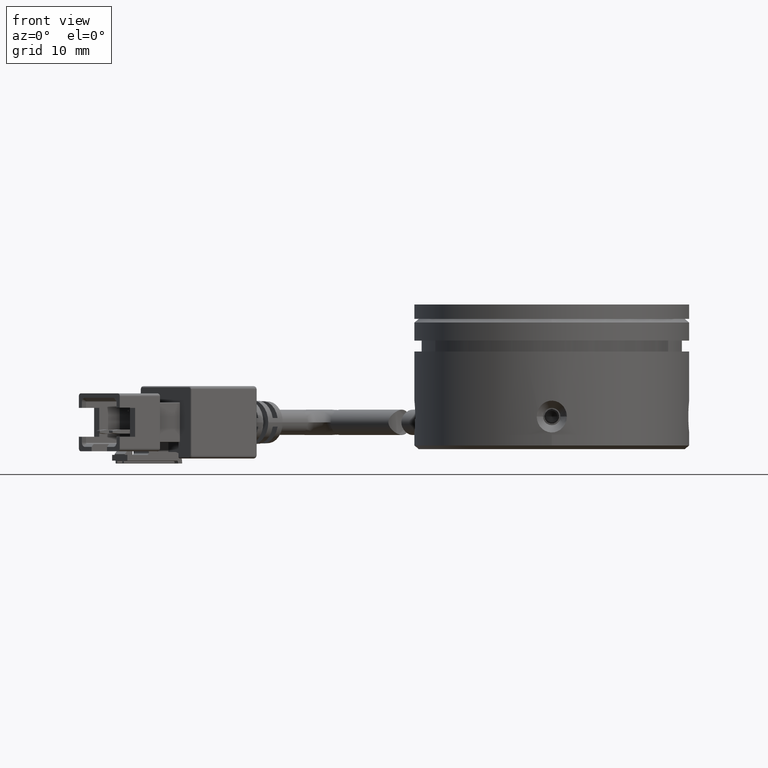
[diagram: clean part render]
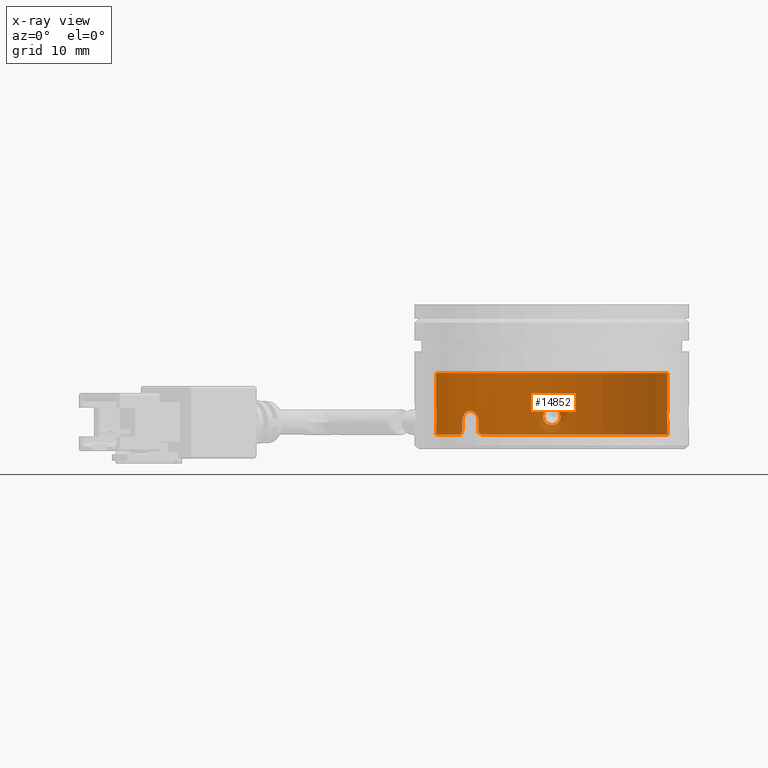
[diagram: x-ray — body ghosted, one internal face saturated and labeled with its STEP entity id]
A machine part, front view, then the same camera in x-ray: the body is ghosted and one INTERNAL B-rep face — a face not visible from any outside direction — is saturated and labeled: STEP entity #14852.
In plain terms, the highlighted cylindrical surface (partial cylindrical patch) has radius 16 mm, axis along (-0, 0, 1).
Its self-contained STEP definition (entity closure, byte-faithful):
#82 = EDGE_CURVE ( 'NONE', #1146, #20950, #19464, .T. ) ;
#249 = CARTESIAN_POINT ( 'NONE',  ( 8.326672684688674100E-014, -1.420917587780644300E-014, -6.835083653659800100 ) ) ;
#378 = CARTESIAN_POINT ( 'NONE',  ( 16.00000000000008200, 0.1585242707669172700, -3.135083653659796400 ) ) ;
#405 = CARTESIAN_POINT ( 'NONE',  ( -15.99999999999992000, -1.539647018829286300E-014, -5.535083653659795800 ) ) ;
#432 = CARTESIAN_POINT ( 'NONE',  ( 1.168329606399341600, 15.95739976434276000, -4.650408457592198500 ) ) ;
#458 = CARTESIAN_POINT ( 'NONE',  ( 1.734723475976807100E-014, 15.99999999999998900, -3.135083653659807000 ) ) ;
#477 = DIRECTION ( 'NONE',  ( -1.000000000000000000, -7.762887554996203100E-017, -5.421010862427521200E-016 ) ) ;
#502 = EDGE_CURVE ( 'NONE', #17630, #23307, #22966, .T. ) ;
#562 = LINE ( 'NONE', #6621, #15248 ) ;
#599 = VERTEX_POINT ( 'NONE', #6679 ) ;
#613 = CARTESIAN_POINT ( 'NONE',  ( -15.96572619059330100, 1.048439727425690200, -4.939642087790210700 ) ) ;
#799 = CARTESIAN_POINT ( 'NONE',  ( -0.1585995165080080200, 15.99999999999998900, -3.135083653659807900 ) ) ;
#877 = CARTESIAN_POINT ( 'NONE',  ( -0.3142230057457140500, 15.99757458764760900, -3.166322364951347400 ) ) ;
#964 = CARTESIAN_POINT ( 'NONE',  ( -0.6048179597235646700, 15.98922524765613500, -3.286782989289538800 ) ) ;
#988 = CARTESIAN_POINT ( 'NONE',  ( 16.00000000000008900, -1.487178104932984100E-014, -5.535083653659784300 ) ) ;
#1032 = CARTESIAN_POINT ( 'NONE',  ( -0.7378928504354971300, 15.98335986192142500, -3.375915946971397700 ) ) ;
#1118 = CARTESIAN_POINT ( 'NONE',  ( -0.9591962643572946600, 15.97160670880823300, -3.597227926081086200 ) ) ;
#1144 = CARTESIAN_POINT ( 'NONE',  ( -1.048596177418351000, 15.96571474644774300, -3.731039070977523000 ) ) ;
#1146 = VERTEX_POINT ( 'NONE', #20561 ) ;
#1207 = CARTESIAN_POINT ( 'NONE',  ( -1.168329606399316300, 15.95739976434275700, -4.019758849727410600 ) ) ;
#1241 = CARTESIAN_POINT ( 'NONE',  ( -1.199890962658233300, 15.95494474103948500, -4.177688880460396000 ) ) ;
#1326 = CARTESIAN_POINT ( 'NONE',  ( -1.200108458374536100, 15.95492838279227000, -4.490811380918906100 ) ) ;
#1485 = CARTESIAN_POINT ( 'NONE',  ( -1.169072333371053800, 15.95734608342769600, -4.648120404551360000 ) ) ;
#1563 = CARTESIAN_POINT ( 'NONE',  ( -1.048960132145660800, 15.96569155370690800, -4.938743134850437100 ) ) ;
#1570 = CARTESIAN_POINT ( 'NONE',  ( -15.97162593414493500, 0.9588750307348601300, -3.596825416522902300 ) ) ;
#1604 = LINE ( 'NONE', #7472, #15095 ) ;
#1638 = CARTESIAN_POINT ( 'NONE',  ( -0.9610526908098108200, 15.97150402601883500, -5.070929113806164100 ) ) ;
#1718 = CARTESIAN_POINT ( 'NONE',  ( -0.7371978798019307400, 15.98340084004852600, -5.295099331524663300 ) ) ;
#1773 = CARTESIAN_POINT ( 'NONE',  ( -10.12562697367774200, 12.38836867347463900, -6.535083653659798500 ) ) ;
#1806 = CARTESIAN_POINT ( 'NONE',  ( -0.6052149241453609300, 15.98921057957799600, -5.383164639477216800 ) ) ;
#1874 = CARTESIAN_POINT ( 'NONE',  ( -0.3145426129513556000, 15.99756865924116600, -5.503767444031701000 ) ) ;
#1943 = CARTESIAN_POINT ( 'NONE',  ( -0.1585993141077009200, 15.99999999999998200, -5.535083653659677700 ) ) ;
#1969 = ORIENTED_EDGE ( 'NONE', *, *, #4510, .F. ) ;
#1970 = B_SPLINE_CURVE_WITH_KNOTS ( 'NONE', 3,
 ( #23495, #10142, #12040, #613, #13981, #2522, #15936, #4447, #17823, #6411 ),
 .UNSPECIFIED., .F., .F.,
 ( 4, 2, 2, 2, 4 ),
 ( -0.001875239980263041200, -0.001406429985197280800, -0.0009376199901315201700, -0.0004688099950657595400, 8.673617379884035500E-019 ),
 .UNSPECIFIED. ) ;
#2013 = CARTESIAN_POINT ( 'NONE',  ( -11.60328978630202800, 11.01699601618051400, -3.586188232338541200 ) ) ;
#2032 = CARTESIAN_POINT ( 'NONE',  ( 1.471967961065994700E-014, 15.99999999999998900, -5.535083653659792300 ) ) ;
#2152 = DIRECTION ( 'NONE',  ( -1.000000000000000000, -7.762887554996203100E-017, -5.421010862427521200E-016 ) ) ;
#2351 = CARTESIAN_POINT ( 'NONE',  ( 1.200108458374565800, 15.95492838279227700, -4.179355926400697600 ) ) ;
#2522 = CARTESIAN_POINT ( 'NONE',  ( -15.98334236173269400, 0.7382588805057962400, -5.293958180536236600 ) ) ;
#2685 = CARTESIAN_POINT ( 'NONE',  ( -10.13371399555957500, 12.38177120725356100, -4.925337122874680100 ) ) ;
#2696 = VERTEX_POINT ( 'NONE', #23496 ) ;
#2701 = EDGE_CURVE ( 'NONE', #6002, #16167, #13864, .T. ) ;
#2734 = ORIENTED_EDGE ( 'NONE', *, *, #9398, .F. ) ;
#2748 = CARTESIAN_POINT ( 'NONE',  ( -10.12562697367774300, 12.38836867347464300, -5.029320142152612600 ) ) ;
#3126 = CARTESIAN_POINT ( 'NONE',  ( -10.12562697367774200, 12.38836867347463900, -5.135083653659796400 ) ) ;
#3180 = CARTESIAN_POINT ( 'NONE',  ( -10.16530794126011000, 12.35584606702136900, -4.720782337593536000 ) ) ;
#3373 = CARTESIAN_POINT ( 'NONE',  ( -12.38836867347469600, 10.12562697367767100, 10.74574377933753900 ) ) ;
#3416 = CARTESIAN_POINT ( 'NONE',  ( -10.18920057767576100, 12.33619950087621000, -4.619145937238372700 ) ) ;
#3417 = EDGE_LOOP ( 'NONE', ( #14595, #2734 ) ) ;
#3468 = B_SPLINE_CURVE_WITH_KNOTS ( 'NONE', 3,
 ( #17571, #19497, #8058, #21423, #9965, #23343, #11877, #432, #13820, #2351, #15767, #4282, #17666, #6243, #19571, #8136, #21503, #10053 ),
 .UNSPECIFIED., .F., .F.,
 ( 4, 2, 2, 2, 2, 2, 2, 2, 4 ),
 ( 0.003752260177793263500, 0.004221293298587085700, 0.004690326419380907500, 0.005159359540174730100, 0.005628392660968551900, 0.006097425781762373700, 0.006566458902556195400, 0.007035492023350015500, 0.007504525144143836400 ),
 .UNSPECIFIED. ) ;
#3532 = CARTESIAN_POINT ( 'NONE',  ( -15.95741475390711300, 1.168127500166700000, -4.019047259181878200 ) ) ;
#3550 = EDGE_CURVE ( 'NONE', #599, #6002, #1604, .T. ) ;
#3561 = CARTESIAN_POINT ( 'NONE',  ( -10.25126111892138100, 12.28467630868706800, -4.425432155843299900 ) ) ;
#3825 = ORIENTED_EDGE ( 'NONE', *, *, #19222, .F. ) ;
#3871 = CARTESIAN_POINT ( 'NONE',  ( -10.28912791240123200, 12.25305019483003800, -4.333566086431714500 ) ) ;
#3950 = CARTESIAN_POINT ( 'NONE',  ( -10.37806121490467800, 12.17781744379795200, -4.159704478894744800 ) ) ;
#3966 = CARTESIAN_POINT ( 'NONE',  ( -10.42956209954621400, 12.13382463555790400, -4.077434714375594500 ) ) ;
#4012 = CARTESIAN_POINT ( 'NONE',  ( -10.59709157279279300, 11.98847420220358900, -3.856203718846047000 ) ) ;
#4061 = CARTESIAN_POINT ( 'NONE',  ( 15.95493654014338800, 1.199999999999979100, -4.335083653659790300 ) ) ;
#4095 = CARTESIAN_POINT ( 'NONE',  ( -10.73061746347456100, 11.86974919819227200, -3.737011606776835700 ) ) ;
#4146 = CARTESIAN_POINT ( 'NONE',  ( 15.95493654014338400, 1.199999999999979100, -4.176558678835806200 ) ) ;
#4236 = CARTESIAN_POINT ( 'NONE',  ( -11.01324005830090000, 11.60799899180076100, -3.577345900279245600 ) ) ;
#4264 = CARTESIAN_POINT ( 'NONE',  ( -11.16524425142649700, 11.46215174638495800, -3.535232147237823400 ) ) ;
#4282 = CARTESIAN_POINT ( 'NONE',  ( 1.048960132145685800, 15.96569155370690800, -3.731424172469155500 ) ) ;
#4284 = VECTOR ( 'NONE', #24268, 1000.000000000000000 ) ;
#4315 = CARTESIAN_POINT ( 'NONE',  ( -11.38673700580213900, 11.24069040688722700, -3.535010010450466900 ) ) ;
#4347 = CARTESIAN_POINT ( 'NONE',  ( -11.46099179335950200, 11.16495419596445300, -3.545389315399806000 ) ) ;
#4447 = CARTESIAN_POINT ( 'NONE',  ( -15.99752946306320900, 0.3160364714517593400, -5.503211162288678800 ) ) ;
#4510 = EDGE_CURVE ( 'NONE', #17929, #14168, #10197, .T. ) ;
#4541 = CARTESIAN_POINT ( 'NONE',  ( -11.67175940160270600, 10.94437911623518500, -3.616383162636081800 ) ) ;
#4622 = CARTESIAN_POINT ( 'NONE',  ( -11.80354684949176300, 10.80211477168424800, -3.696487421920180000 ) ) ;
#4643 = CARTESIAN_POINT ( 'NONE',  ( -11.86657678847178100, 10.73274842954066700, -3.746532463103394100 ) ) ;
#4667 = FACE_BOUND ( 'NONE', #3417, .T. ) ;
#4683 = CARTESIAN_POINT ( 'NONE',  ( -11.98231978868393500, 10.60337427474002100, -3.862247286587893000 ) ) ;
#4770 = CARTESIAN_POINT ( 'NONE',  ( -12.03578531414158100, 10.54255587740537200, -3.928316550675006600 ) ) ;
#4801 = CARTESIAN_POINT ( 'NONE',  ( -12.13398249234351000, 10.42938547719001500, -4.077573169466386800 ) ) ;
#4832 = CARTESIAN_POINT ( 'NONE',  ( -12.17710394314926200, 10.37889795467596300, -4.158312772626028500 ) ) ;
#4840 = CARTESIAN_POINT ( 'NONE',  ( -9.715197645715504000, 12.71278626834739200, -6.835083653659803600 ) ) ;
#4893 = CARTESIAN_POINT ( 'NONE',  ( -12.28452472749894000, 10.25144291404706500, -4.424952198904051700 ) ) ;
#5009 = CARTESIAN_POINT ( 'NONE',  ( -12.36188340739521300, 10.15826545350967400, -4.715531500563373300 ) ) ;
#5053 = VECTOR ( 'NONE', #15246, 1000.000000000000000 ) ;
#5061 = LINE ( 'NONE', #15897, #19684 ) ;
#5225 = CARTESIAN_POINT ( 'NONE',  ( -12.38836867347468000, 10.12562697367767800, -4.923557011602298400 ) ) ;
#5311 = EDGE_CURVE ( 'NONE', #6565, #6641, #5061, .T. ) ;
#5320 = CARTESIAN_POINT ( 'NONE',  ( -12.38836867347468200, 10.12562697367767400, -5.135083653659798100 ) ) ;
#5369 = ORIENTED_EDGE ( 'NONE', *, *, #24118, .T. ) ;
#5370 = CARTESIAN_POINT ( 'NONE',  ( -15.99999999999991700, 0.1585249498188053800, -3.135083653659847400 ) ) ;
#5392 = CARTESIAN_POINT ( 'NONE',  ( 16.00000000000008200, -1.474750050315809000E-014, 1.664916346340207200 ) ) ;
#5453 = CARTESIAN_POINT ( 'NONE',  ( -15.95493654014322800, 1.199999999999980400, -4.335083653659802700 ) ) ;
#5622 = CARTESIAN_POINT ( 'NONE',  ( 7.632783294297951200E-014, -1.385107938883699800E-014, 1.664916346340198600 ) ) ;
#5749 = CARTESIAN_POINT ( 'NONE',  ( 16.00000000000008900, -1.487178104932984100E-014, -5.535083653659784300 ) ) ;
#5830 = ORIENTED_EDGE ( 'NONE', *, *, #2701, .T. ) ;
#6002 = VERTEX_POINT ( 'NONE', #988 ) ;
#6243 = CARTESIAN_POINT ( 'NONE',  ( 0.7371978798019435100, 15.98340084004853500, -3.375067975794922700 ) ) ;
#6348 = DIRECTION ( 'NONE',  ( -5.418055927066809900E-016, 4.212899870228777700E-017, 1.000000000000000000 ) ) ;
#6411 = CARTESIAN_POINT ( 'NONE',  ( -15.99999999999992000, -1.539647018829286300E-014, -5.535083653659795800 ) ) ;
#6565 = VERTEX_POINT ( 'NONE', #21157 ) ;
#6621 = CARTESIAN_POINT ( 'NONE',  ( -15.99999999999993100, -1.471057523049594800E-014, 10.74574377933753800 ) ) ;
#6641 = VERTEX_POINT ( 'NONE', #405 ) ;
#6679 = CARTESIAN_POINT ( 'NONE',  ( 16.00000000000008900, -1.474750050315809000E-014, -6.835083653659792100 ) ) ;
#6883 = CIRCLE ( 'NONE', #8826, 16.00000000000000400 ) ;
#7366 = CYLINDRICAL_SURFACE ( 'NONE', #9007, 16.00000000000000400 ) ;
#7472 = CARTESIAN_POINT ( 'NONE',  ( 16.00000000000007800, -1.418588609153292500E-014, 10.74574377933755500 ) ) ;
#7533 = DIRECTION ( 'NONE',  ( -1.000000000000000000, -7.762887554996203100E-017, -5.421010862427521200E-016 ) ) ;
#7607 = DIRECTION ( 'NONE',  ( -5.418055927066809900E-016, 4.212899870228777700E-017, 1.000000000000000000 ) ) ;
#7892 = ORIENTED_EDGE ( 'NONE', *, *, #23182, .F. ) ;
#8002 = CARTESIAN_POINT ( 'NONE',  ( 15.96572619059346100, 1.048439727425690500, -3.730525219529384100 ) ) ;
#8058 = CARTESIAN_POINT ( 'NONE',  ( 0.3142230057457500200, 15.99757458764761800, -5.503844942368250100 ) ) ;
#8136 = CARTESIAN_POINT ( 'NONE',  ( 0.3145426129514020700, 15.99756865924116200, -3.166399863287908500 ) ) ;
#8319 = ORIENTED_EDGE ( 'NONE', *, *, #5311, .F. ) ;
#8348 = CARTESIAN_POINT ( 'NONE',  ( -12.25224248853598800, 10.29008927065025200, -4.331447468998818300 ) ) ;
#8505 = DIRECTION ( 'NONE',  ( -5.418055927066809900E-016, 4.212899870228777700E-017, 1.000000000000000000 ) ) ;
#8580 = CARTESIAN_POINT ( 'NONE',  ( 7.285838599102589800E-014, -1.346851322169655200E-014, 10.74574377933754700 ) ) ;
#8826 = AXIS2_PLACEMENT_3D ( 'NONE', #249, #13627, #2152 ) ;
#8877 = ORIENTED_EDGE ( 'NONE', *, *, #10171, .T. ) ;
#8929 = VECTOR ( 'NONE', #7607, 1000.000000000000000 ) ;
#9007 = AXIS2_PLACEMENT_3D ( 'NONE', #8580, #8505, #20103 ) ;
#9151 = AXIS2_PLACEMENT_3D ( 'NONE', #23380, #11915, #477 ) ;
#9216 = CIRCLE ( 'NONE', #9151, 16.00000000000000400 ) ;
#9398 = EDGE_CURVE ( 'NONE', #23307, #17630, #3468, .T. ) ;
#9906 = CARTESIAN_POINT ( 'NONE',  ( 15.98334236173285400, 0.7382588805057971300, -3.376209126783359600 ) ) ;
#9965 = CARTESIAN_POINT ( 'NONE',  ( 0.7378928504355238800, 15.98335986192143900, -5.294251360348202900 ) ) ;
#9966 = LINE ( 'NONE', #3373, #4284 ) ;
#10018 = CIRCLE ( 'NONE', #23484, 16.00000000000000400 ) ;
#10053 = CARTESIAN_POINT ( 'NONE',  ( 1.734723475976807100E-014, 15.99999999999998900, -3.135083653659807000 ) ) ;
#10120 = LINE ( 'NONE', #13289, #5053 ) ;
#10142 = CARTESIAN_POINT ( 'NONE',  ( -15.95493654014322400, 1.199999999999980200, -4.493608628483791300 ) ) ;
#10171 = EDGE_CURVE ( 'NONE', #14390, #6641, #1970, .T. ) ;
#10197 =( BOUNDED_CURVE ( )  B_SPLINE_CURVE ( 3, ( #19208, #23124, #17445, #19379 ),
 .UNSPECIFIED., .F., .T. ) 
 B_SPLINE_CURVE_WITH_KNOTS ( ( 4, 4 ),
 ( 1.670963747956457400, 1.689827206273323300 ),
 .UNSPECIFIED. ) 
 CURVE ( )  GEOMETRIC_REPRESENTATION_ITEM ( )  RATIONAL_B_SPLINE_CURVE ( ( 1.000000000000000000, 0.9999703477148443900, 0.9999703477148443900, 1.000000000000000000 ) ) 
 REPRESENTATION_ITEM ( '' )  );
#10416 = VERTEX_POINT ( 'NONE', #5392 ) ;
#10528 = EDGE_CURVE ( 'NONE', #18059, #10416, #10120, .T. ) ;
#10557 = EDGE_CURVE ( 'NONE', #18535, #1146, #19074, .T. ) ;
#11134 = CARTESIAN_POINT ( 'NONE',  ( -15.99757705726191600, 0.3140721736569396200, -3.166291326207477700 ) ) ;
#11142 = CARTESIAN_POINT ( 'NONE',  ( -12.38836867347467500, 10.12562697367766300, -6.315468411389135300 ) ) ;
#11619 = EDGE_CURVE ( 'NONE', #24260, #10416, #10018, .T. ) ;
#11824 = CARTESIAN_POINT ( 'NONE',  ( 15.99752946306337300, 0.3160364714517603900, -3.166956145030914700 ) ) ;
#11877 = CARTESIAN_POINT ( 'NONE',  ( 1.048596177418374100, 15.96571474644775000, -4.939128236342086500 ) ) ;
#11915 = DIRECTION ( 'NONE',  ( -5.418055927066809900E-016, 4.212899870228777700E-017, 1.000000000000000000 ) ) ;
#12032 = EDGE_CURVE ( 'NONE', #20950, #17929, #9966, .T. ) ;
#12040 = CARTESIAN_POINT ( 'NONE',  ( -15.95736705046227000, 1.168792313399884300, -4.649155763946615700 ) ) ;
#13026 = CARTESIAN_POINT ( 'NONE',  ( -15.98337379188156000, 0.7375896784876319100, -3.375694256461887000 ) ) ;
#13089 = CARTESIAN_POINT ( 'NONE',  ( -10.12562697367774200, 12.38836867347463900, -6.535083653659798500 ) ) ;
#13236 = CARTESIAN_POINT ( 'NONE',  ( -9.990591399886573900, 12.49873993255038600, -6.635270573645863500 ) ) ;
#13289 = CARTESIAN_POINT ( 'NONE',  ( 16.00000000000007800, -1.418588609153292500E-014, 10.74574377933755500 ) ) ;
#13384 = CARTESIAN_POINT ( 'NONE',  ( 1.734723475976807100E-014, 15.99999999999998900, -3.135083653659807000 ) ) ;
#13494 = CARTESIAN_POINT ( 'NONE',  ( 15.95493654014338800, 1.199999999999978600, -4.493610672864372500 ) ) ;
#13627 = DIRECTION ( 'NONE',  ( -5.418055927066809900E-016, 4.212899870228777700E-017, 1.000000000000000000 ) ) ;
#13640 = CARTESIAN_POINT ( 'NONE',  ( 1.471967961065994700E-014, 15.99999999999998900, -5.535083653659792300 ) ) ;
#13764 = CARTESIAN_POINT ( 'NONE',  ( 16.00000000000008500, -1.477067145244435200E-014, -3.135083653659796800 ) ) ;
#13820 = CARTESIAN_POINT ( 'NONE',  ( 1.199890962658259900, 15.95494474103949600, -4.492478426859218400 ) ) ;
#13864 = B_SPLINE_CURVE_WITH_KNOTS ( 'NONE', 3,
 ( #5749, #22426, #20348, #20256, #20084, #16265, #14711, #14677, #13494, #14241 ),
 .UNSPECIFIED., .F., .F.,
 ( 4, 2, 2, 2, 4 ),
 ( 0.003750504144054647500, 0.004219320185019843600, 0.004688136225985038700, 0.005156952266950234700, 0.005625768307915430700 ),
 .UNSPECIFIED. ) ;
#13981 = CARTESIAN_POINT ( 'NONE',  ( -15.97159448480982200, 0.9593898268154315000, -5.072672762270569200 ) ) ;
#14047 = EDGE_CURVE ( 'NONE', #2696, #24260, #562, .T. ) ;
#14068 = VERTEX_POINT ( 'NONE', #4840 ) ;
#14168 = VERTEX_POINT ( 'NONE', #24187 ) ;
#14241 = CARTESIAN_POINT ( 'NONE',  ( 15.95493654014338800, 1.199999999999979100, -4.335083653659790300 ) ) ;
#14390 = VERTEX_POINT ( 'NONE', #15282 ) ;
#14395 = ORIENTED_EDGE ( 'NONE', *, *, #19508, .F. ) ;
#14595 = ORIENTED_EDGE ( 'NONE', *, *, #502, .F. ) ;
#14677 = CARTESIAN_POINT ( 'NONE',  ( 15.95741475390727300, 1.168127500166697800, -4.651120048137720200 ) ) ;
#14711 = CARTESIAN_POINT ( 'NONE',  ( 15.96573496035059700, 1.048291305268773000, -4.939638199237112600 ) ) ;
#14852 = ADVANCED_FACE ( 'NONE', ( #4667, #19308 ), #7366, .F. ) ;
#14984 = CARTESIAN_POINT ( 'NONE',  ( -15.96573496035043700, 1.048291305268776800, -3.730529108082484900 ) ) ;
#15095 = VECTOR ( 'NONE', #6348, 1000.000000000000000 ) ;
#15246 = DIRECTION ( 'NONE',  ( -5.418055927066809900E-016, 4.212899870228777700E-017, 1.000000000000000000 ) ) ;
#15248 = VECTOR ( 'NONE', #17962, 1000.000000000000000 ) ;
#15282 = CARTESIAN_POINT ( 'NONE',  ( -15.95493654014322800, 1.199999999999980400, -4.335083653659802700 ) ) ;
#15561 = ORIENTED_EDGE ( 'NONE', *, *, #16217, .T. ) ;
#15767 = CARTESIAN_POINT ( 'NONE',  ( 1.169072333371088000, 15.95734608342770000, -4.022046902768254400 ) ) ;
#15897 = CARTESIAN_POINT ( 'NONE',  ( -15.99999999999993100, -1.471057523049594800E-014, 10.74574377933753800 ) ) ;
#15936 = CARTESIAN_POINT ( 'NONE',  ( -15.98922578572032500, 0.6045549984240010700, -5.383374730405060800 ) ) ;
#16167 = VERTEX_POINT ( 'NONE', #4061 ) ;
#16217 = EDGE_CURVE ( 'NONE', #16167, #18059, #16714, .T. ) ;
#16265 = CARTESIAN_POINT ( 'NONE',  ( 15.97162593414508800, 0.9588750307348546900, -5.073341890796694300 ) ) ;
#16714 = B_SPLINE_CURVE_WITH_KNOTS ( 'NONE', 3,
 ( #21293, #4146, #19439, #8002, #21368, #9906, #23274, #11824, #378, #13764 ),
 .UNSPECIFIED., .F., .F.,
 ( 4, 2, 2, 2, 4 ),
 ( -0.001875239980263045300, -0.001406429985197284700, -0.0009376199901315229900, -0.0004688099950657612800, 6.505213034913026600E-019 ),
 .UNSPECIFIED. ) ;
#16882 = CARTESIAN_POINT ( 'NONE',  ( -15.95493654014322100, 1.199999999999980600, -4.176556634455225800 ) ) ;
#17121 = ORIENTED_EDGE ( 'NONE', *, *, #14047, .F. ) ;
#17445 = CARTESIAN_POINT ( 'NONE',  ( -12.51496926543647000, 9.969235977429512700, -6.662060907696213600 ) ) ;
#17518 = ORIENTED_EDGE ( 'NONE', *, *, #10557, .F. ) ;
#17571 = CARTESIAN_POINT ( 'NONE',  ( 1.471967961065994700E-014, 15.99999999999998900, -5.535083653659792300 ) ) ;
#17630 = VERTEX_POINT ( 'NONE', #13384 ) ;
#17666 = CARTESIAN_POINT ( 'NONE',  ( 0.9610526908098517800, 15.97150402601883500, -3.599238193513449900 ) ) ;
#17781 = DIRECTION ( 'NONE',  ( -5.418055927066809900E-016, 4.212899870228777700E-017, 1.000000000000000000 ) ) ;
#17823 = CARTESIAN_POINT ( 'NONE',  ( -15.99999999999992700, 0.1585242707669181400, -5.535083653659797600 ) ) ;
#17929 = VERTEX_POINT ( 'NONE', #11142 ) ;
#17962 = DIRECTION ( 'NONE',  ( -5.418055927066809900E-016, 4.212899870228777700E-017, 1.000000000000000000 ) ) ;
#18059 = VERTEX_POINT ( 'NONE', #22955 ) ;
#18535 = VERTEX_POINT ( 'NONE', #13089 ) ;
#18715 = CARTESIAN_POINT ( 'NONE',  ( -15.99999999999992400, -1.529536059140737100E-014, -3.135083653659809200 ) ) ;
#18728 = CARTESIAN_POINT ( 'NONE',  ( -12.38836867347468200, 10.12562697367767400, -5.135083653659798100 ) ) ;
#18963 = DIRECTION ( 'NONE',  ( 5.418055927066809900E-016, -4.212899870228777700E-017, -1.000000000000000000 ) ) ;
#19028 = CARTESIAN_POINT ( 'NONE',  ( -15.99999999999992700, -1.509314139763639100E-014, 1.664916346340189900 ) ) ;
#19074 = LINE ( 'NONE', #22798, #8929 ) ;
#19208 = CARTESIAN_POINT ( 'NONE',  ( -12.38836867347467500, 10.12562697367766300, -6.315468411389135300 ) ) ;
#19222 = EDGE_CURVE ( 'NONE', #14168, #6565, #6883, .T. ) ;
#19308 = FACE_OUTER_BOUND ( 'NONE', #22613, .T. ) ;
#19379 = CARTESIAN_POINT ( 'NONE',  ( -12.57715767688536500, 9.890151908376404700, -6.835083653659817800 ) ) ;
#19439 = CARTESIAN_POINT ( 'NONE',  ( 15.95736705046242300, 1.168792313399884300, -4.021011543372982700 ) ) ;
#19464 = B_SPLINE_CURVE_WITH_KNOTS ( 'NONE', 3,
 ( #3126, #2748, #2685, #3180, #3416, #3561, #3871, #3950, #3966, #4012, #4095, #4236, #4264, #4315, #4347, #2013, #4541, #4622, #4643, #4683, #4770, #4801, #4832, #8348, #4893, #5009, #5225, #5320 ),
 .UNSPECIFIED., .F., .F.,
 ( 4, 2, 2, 2, 2, 2, 2, 2, 2, 2, 2, 2, 2, 4 ),
 ( 0.0000000000000000000, 0.0003127717227130139400, 0.0006255434454260278700, 0.0009383151681390417600, 0.001251086890852055700, 0.001876630336278078500, 0.002502173781704101500, 0.002814945504417116300, 0.003127717227130131500, 0.003440488949843146600, 0.003753260672556161400, 0.004066032395269176600, 0.004378804117982191800, 0.005004347563408219500 ),
 .UNSPECIFIED. ) ;
#19497 = CARTESIAN_POINT ( 'NONE',  ( 0.1585995165071647500, 16.00000000000000400, -5.535083653659909500 ) ) ;
#19508 = EDGE_CURVE ( 'NONE', #599, #14068, #9216, .T. ) ;
#19571 = CARTESIAN_POINT ( 'NONE',  ( 0.6052149241453820300, 15.98921057957801000, -3.287002667842380300 ) ) ;
#19684 = VECTOR ( 'NONE', #17781, 1000.000000000000000 ) ;
#20059 = ORIENTED_EDGE ( 'NONE', *, *, #12032, .F. ) ;
#20084 = CARTESIAN_POINT ( 'NONE',  ( 15.98337379188171800, 0.7375896784876292400, -5.294473050857709100 ) ) ;
#20103 = DIRECTION ( 'NONE',  ( -1.000000000000000000, -7.762887554996213000E-017, -5.421010862427521200E-016 ) ) ;
#20256 = CARTESIAN_POINT ( 'NONE',  ( 15.98923455249352400, 0.6045588959322983900, -5.383523149446803700 ) ) ;
#20348 = CARTESIAN_POINT ( 'NONE',  ( 15.99757705726208600, 0.3140721736569406200, -5.503875981112115000 ) ) ;
#20561 = CARTESIAN_POINT ( 'NONE',  ( -10.12562697367774200, 12.38836867347463900, -5.135083653659796400 ) ) ;
#20577 =( BOUNDED_CURVE ( )  B_SPLINE_CURVE ( 3, ( #22661, #22747, #13236, #1773 ),
 .UNSPECIFIED., .F., .T. ) 
 B_SPLINE_CURVE_WITH_KNOTS ( ( 4, 4 ),
 ( 4.579522445743026400, 4.612221559223129900 ),
 .UNSPECIFIED. ) 
 CURVE ( )  GEOMETRIC_REPRESENTATION_ITEM ( )  RATIONAL_B_SPLINE_CURVE ( ( 1.000000000000000000, 0.9999108993162716400, 0.9999108993162716400, 1.000000000000000000 ) ) 
 REPRESENTATION_ITEM ( '' )  );
#20950 = VERTEX_POINT ( 'NONE', #18728 ) ;
#21157 = CARTESIAN_POINT ( 'NONE',  ( -15.99999999999992000, -1.527218964212111500E-014, -6.835083653659809000 ) ) ;
#21293 = CARTESIAN_POINT ( 'NONE',  ( 15.95493654014338800, 1.199999999999979100, -4.335083653659790300 ) ) ;
#21368 = CARTESIAN_POINT ( 'NONE',  ( 15.97159448480998200, 0.9593898268154321700, -3.597494545049026500 ) ) ;
#21423 = CARTESIAN_POINT ( 'NONE',  ( 0.6048179597235776600, 15.98922524765613500, -5.383384318030068400 ) ) ;
#21503 = CARTESIAN_POINT ( 'NONE',  ( 0.1585997189094856000, 16.00000000000000000, -3.135083653659808300 ) ) ;
#21648 = ORIENTED_EDGE ( 'NONE', *, *, #10528, .T. ) ;
#21768 = B_SPLINE_CURVE_WITH_KNOTS ( 'NONE', 3,
 ( #18715, #5370, #11134, #24444, #13026, #1570, #14984, #3532, #16882, #5453 ),
 .UNSPECIFIED., .F., .F.,
 ( 4, 2, 2, 2, 4 ),
 ( 0.003750504144054646700, 0.004219320185019842700, 0.004688136225985039600, 0.005156952266950235600, 0.005625768307915430700 ),
 .UNSPECIFIED. ) ;
#22110 = ORIENTED_EDGE ( 'NONE', *, *, #82, .F. ) ;
#22426 = CARTESIAN_POINT ( 'NONE',  ( 16.00000000000008900, 0.1585249498185104800, -5.535083653659786100 ) ) ;
#22613 = EDGE_LOOP ( 'NONE', ( #14395, #23816, #5830, #15561, #21648, #23766, #17121, #5369, #8877, #8319, #3825, #1969, #20059, #22110, #17518, #7892 ) ) ;
#22661 = CARTESIAN_POINT ( 'NONE',  ( -9.715197645715504000, 12.71278626834739200, -6.835083653659803600 ) ) ;
#22747 = CARTESIAN_POINT ( 'NONE',  ( -9.853769432968364900, 12.60688876697639700, -6.735279484508202700 ) ) ;
#22798 = CARTESIAN_POINT ( 'NONE',  ( -10.12562697367774900, 12.38836867347464300, 10.74574377933754100 ) ) ;
#22955 = CARTESIAN_POINT ( 'NONE',  ( 16.00000000000008500, -1.477067145244435200E-014, -3.135083653659796800 ) ) ;
#22966 = B_SPLINE_CURVE_WITH_KNOTS ( 'NONE', 3,
 ( #458, #799, #877, #964, #1032, #1118, #1144, #1207, #1241, #1326, #1485, #1563, #1638, #1718, #1806, #1874, #1943, #2032 ),
 .UNSPECIFIED., .F., .F.,
 ( 4, 2, 2, 2, 2, 2, 2, 2, 4 ),
 ( 0.0000000000000000000, 0.0004690325222241589700, 0.0009380650444483179400, 0.001407097566672476700, 0.001876130088896634400, 0.002345162611120791200, 0.002814195133344949000, 0.003283227655569106100, 0.003752260177793263500 ),
 .UNSPECIFIED. ) ;
#23124 = CARTESIAN_POINT ( 'NONE',  ( -12.45203773156912600, 10.04772999339021300, -6.488850690860578800 ) ) ;
#23182 = EDGE_CURVE ( 'NONE', #14068, #18535, #20577, .T. ) ;
#23274 = CARTESIAN_POINT ( 'NONE',  ( 15.98922578572049100, 0.6045549984240018400, -3.286792576914533200 ) ) ;
#23307 = VERTEX_POINT ( 'NONE', #13640 ) ;
#23343 = CARTESIAN_POINT ( 'NONE',  ( 0.9591962643573138700, 15.97160670880824000, -5.072939381238527700 ) ) ;
#23380 = CARTESIAN_POINT ( 'NONE',  ( 8.326672684688674100E-014, -1.420917587780644300E-014, -6.835083653659800100 ) ) ;
#23484 = AXIS2_PLACEMENT_3D ( 'NONE', #5622, #18963, #7533 ) ;
#23495 = CARTESIAN_POINT ( 'NONE',  ( -15.95493654014322800, 1.199999999999980400, -4.335083653659802700 ) ) ;
#23496 = CARTESIAN_POINT ( 'NONE',  ( -15.99999999999992400, -1.529536059140737100E-014, -3.135083653659809200 ) ) ;
#23766 = ORIENTED_EDGE ( 'NONE', *, *, #11619, .F. ) ;
#23816 = ORIENTED_EDGE ( 'NONE', *, *, #3550, .T. ) ;
#24118 = EDGE_CURVE ( 'NONE', #2696, #14390, #21768, .T. ) ;
#24187 = CARTESIAN_POINT ( 'NONE',  ( -12.57715767688536500, 9.890151908376404700, -6.835083653659817800 ) ) ;
#24260 = VERTEX_POINT ( 'NONE', #19028 ) ;
#24268 = DIRECTION ( 'NONE',  ( 5.418055927066809900E-016, -4.212899870228777700E-017, -1.000000000000000000 ) ) ;
#24444 = CARTESIAN_POINT ( 'NONE',  ( -15.98923455249336800, 0.6045588959323053800, -3.286644157872792100 ) ) ;